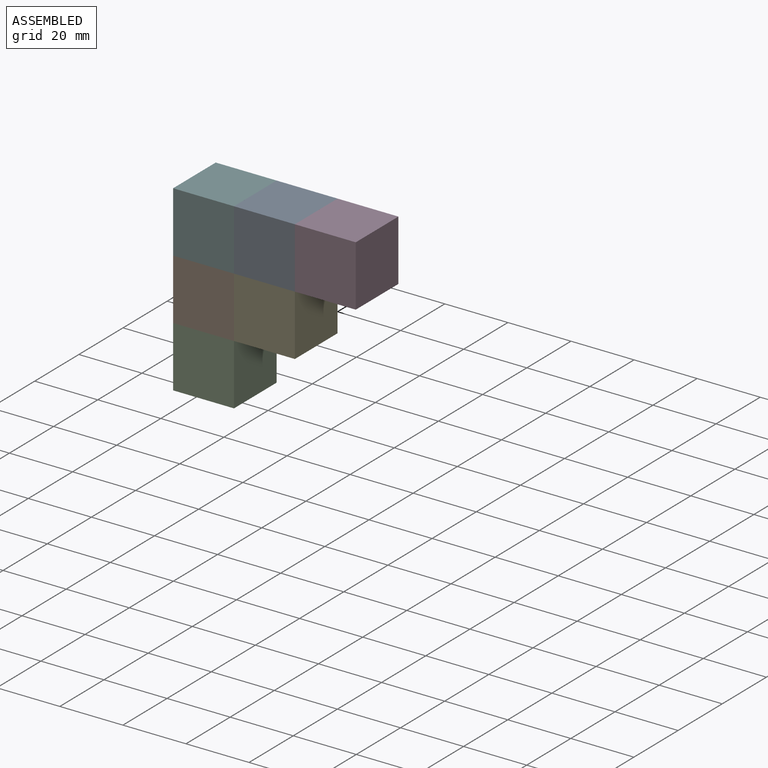
[diagram: assembled view]
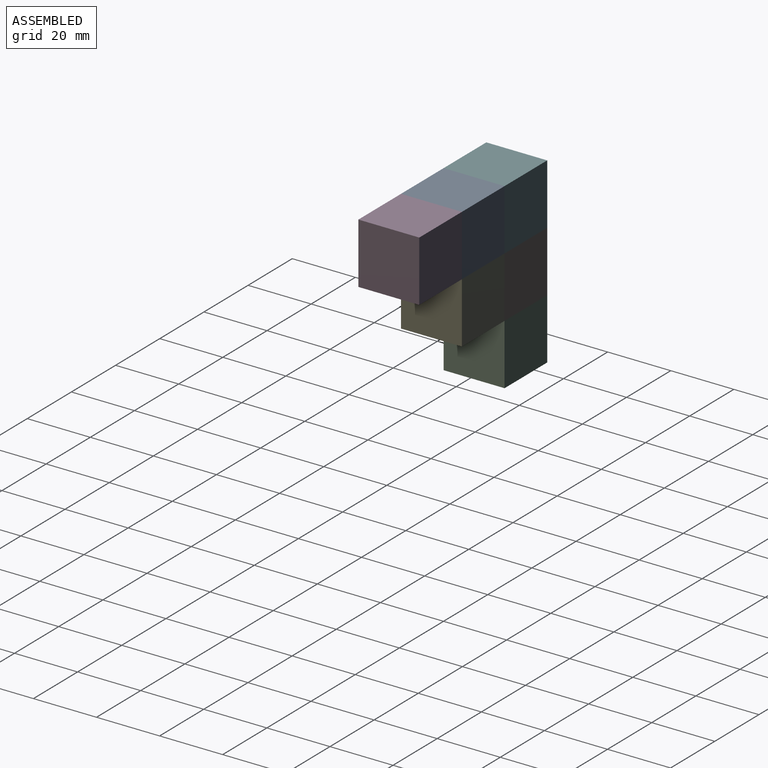
[diagram: assembled view, second angle]
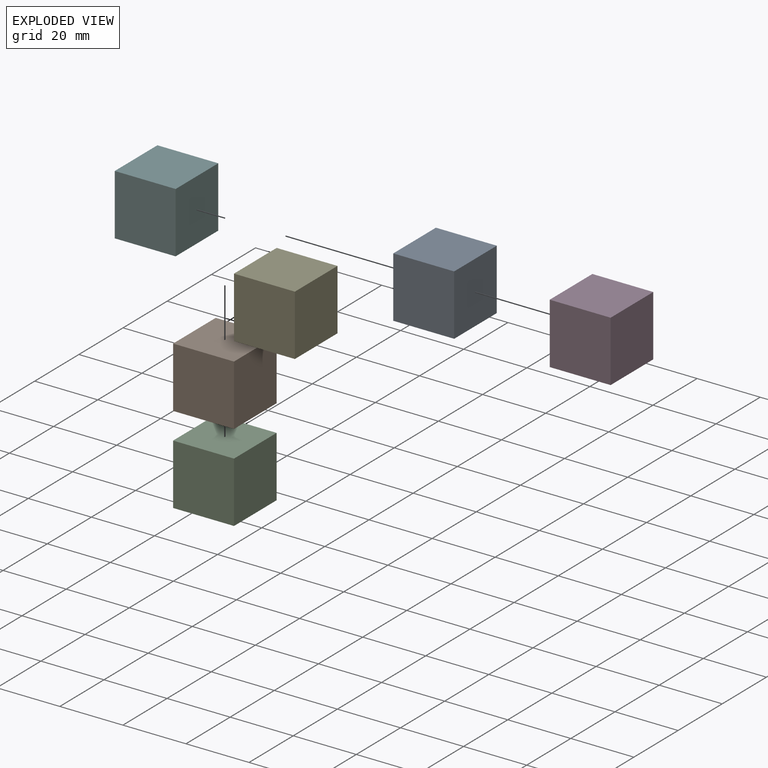
[diagram: exploded view]
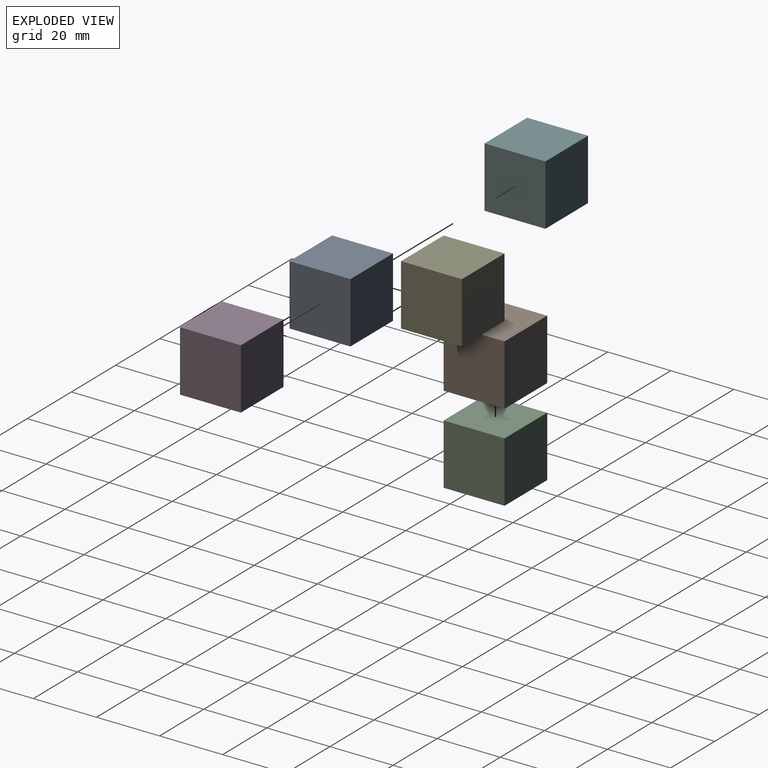
[diagram: exploded view, second angle]
ASSEMBLY  parts=6 mates=5
PART A: 6 faces, bbox 19.3x19.3x19.3 mm
  f0: plane 19.3x19.3mm, normal (0,0,1), area 372.6mm2, adj f1,f3,f4,f5
  f1: plane 19.3x19.3mm, normal (-1,0,0), area 372.6mm2, adj f0,f2,f4,f5
  f2: plane 19.3x19.3mm, normal (0,0,-1), area 372.6mm2, adj f1,f3,f4,f5
  f3: plane 19.3x19.3mm, normal (1,0,0), area 372.6mm2, adj f0,f2,f4,f5
  f4: plane 19.3x19.3mm, normal (0,-1,0), area 372.6mm2, adj f0,f1,f2,f3
  f5: plane 19.3x19.3mm, normal (0,1,0), area 372.6mm2, adj f0,f1,f2,f3
PART B: same geometry as A
PART C: same geometry as A
PART D: same geometry as A
PART E: same geometry as A
PART F: same geometry as A
PLACE A t=(64.67,-6.14,17.36)mm
PLACE B t=(45.37,-6.14,-1.94)mm
PLACE C t=(45.37,-6.14,-21.24)mm
PLACE D t=(83.97,-6.14,17.36)mm
PLACE E t=(64.67,-6.14,-1.94)mm
PLACE F t=(45.37,-6.14,17.36)mm
MATE fastened C.f0 <-> B.f2  axis (0,0,1) through (45.37,-15.79,-11.59)mm
MATE fastened D.f1 <-> A.f3  axis (-1,0,0) through (74.32,-15.79,17.36)mm
MATE fastened F.f2 <-> B.f0  axis (0,0,-1) through (45.37,-15.79,7.71)mm
MATE fastened E.f1 <-> B.f3  axis (-1,0,0) through (55.02,-15.79,-1.94)mm
MATE fastened A.f1 <-> F.f3  axis (-1,0,0) through (55.02,-15.79,17.36)mm
